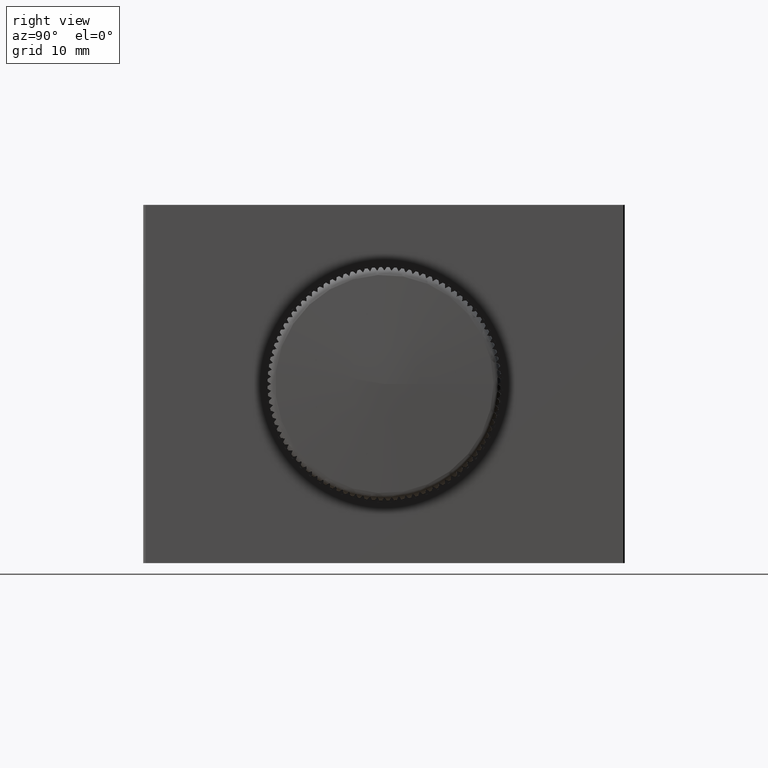
[diagram: clean part render]
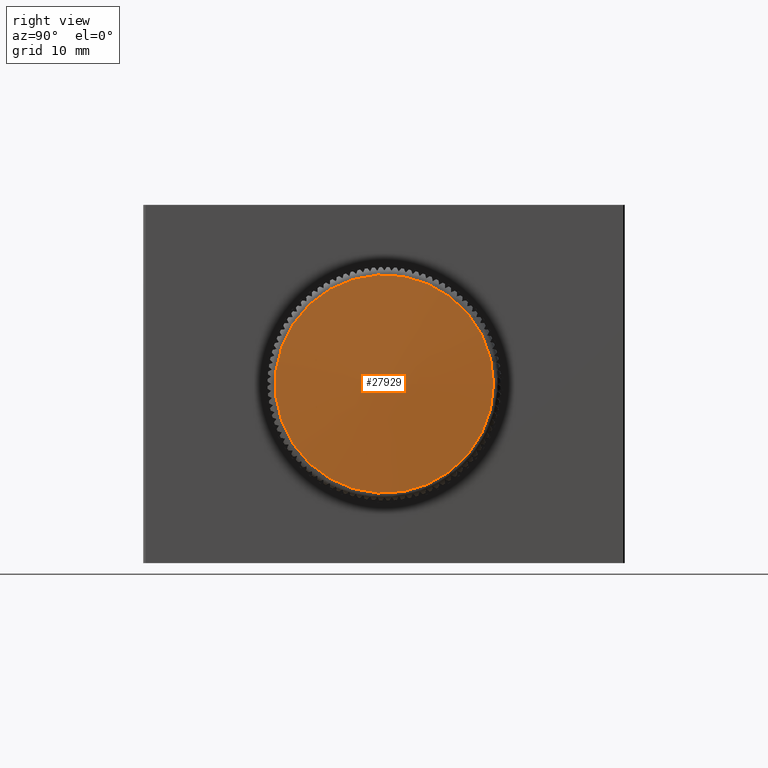
[diagram: same view with one face highlighted and labeled with its STEP entity id]
A machine part, right view. The second image highlights one B-rep face of the part: STEP entity #27929.
In plain terms, the highlighted conical surface has half-angle 88.049 deg.
Its self-contained STEP definition (entity closure, byte-faithful):
#25726=CARTESIAN_POINT('',(15.008365284550782,13.156644345228997,-3.357638E-015));
#25727=VERTEX_POINT('',#25726);
#25728=CARTESIAN_POINT('',(15.008365284550786,-0.552407445898802,-1.678819E-015));
#25729=DIRECTION('',(-1.0,0.0,0.0));
#25730=DIRECTION('',(0.0,-1.0,0.0));
#25731=AXIS2_PLACEMENT_3D('',#25728,#25729,#25730);
#25732=CIRCLE('',#25731,13.709051791127800);
#25733=EDGE_CURVE('',#25727,#25727,#25732,.T.);
#27921=CARTESIAN_POINT('',(15.225453931607953,-0.552407445898802,0.0));
#27922=DIRECTION('',(-1.0,0.0,0.0));
#27923=DIRECTION('',(0.0,1.0,0.0));
#27924=AXIS2_PLACEMENT_3D('',#27921,#27922,#27923);
#27925=CONICAL_SURFACE('',#27924,7.337500000000004,88.048598843312618);
#27926=ORIENTED_EDGE('',*,*,#25733,.F.);
#27927=EDGE_LOOP('',(#27926));
#27928=FACE_OUTER_BOUND('',#27927,.T.);
#27929=ADVANCED_FACE('',(#27928),#27925,.T.);